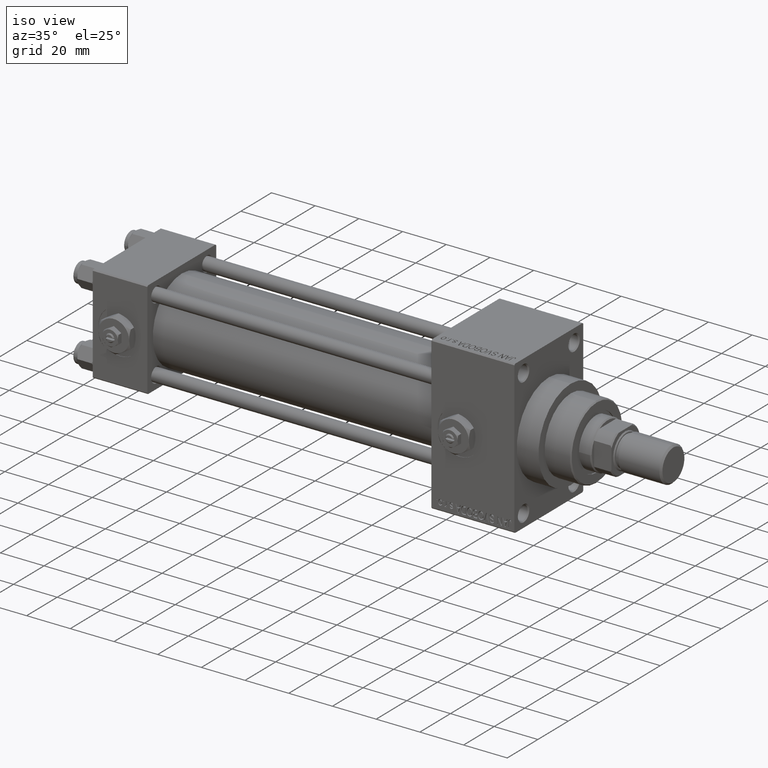
[diagram: clean part render]
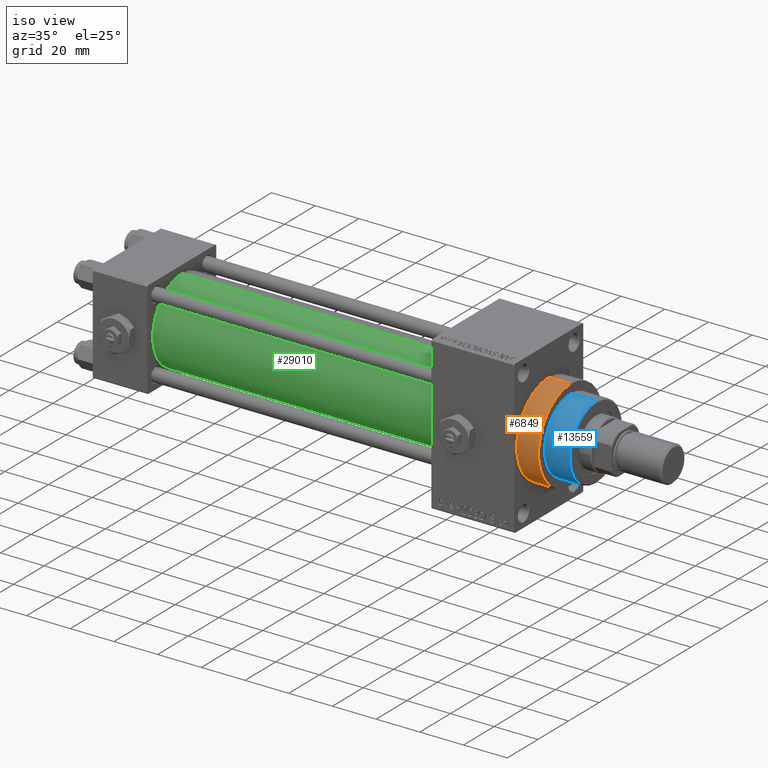
[diagram: same view with three faces highlighted in distinct colors, each labeled with its STEP entity id]
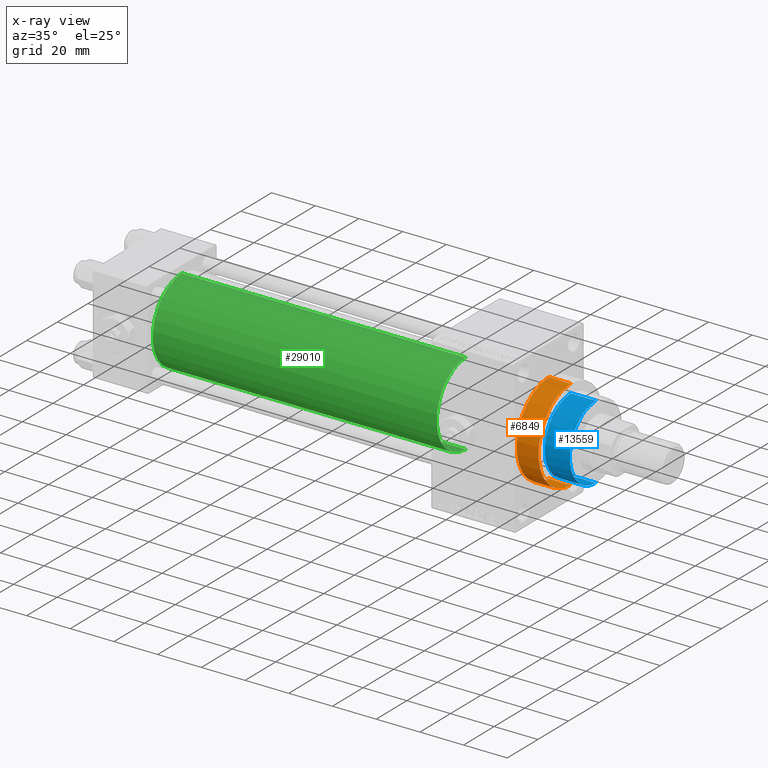
[diagram: x-ray of the same camera — body ghosted, the three highlighted faces saturated]
A machine part, iso view with three faces highlighted in distinct colors.
The next image is the same camera in x-ray (body ghosted, the three faces saturated) — at least one of them is partly hidden behind the body in this view.
Their STEP definitions:

[orange] entity #6849 — the highlighted cylindrical surface (partial cylindrical patch) has radius 21 mm, axis along (-1, -0, -0).
#2756 = VERTEX_POINT ( 'NONE', #5155 ) ;
#3358 = EDGE_CURVE ( 'NONE', #28763, #2756, #44816, .T. ) ;
#4027 = CARTESIAN_POINT ( 'NONE',  ( 193.0000000000000000, 0.000000000000000000, 21.00000000000000000 ) ) ;
#5155 = CARTESIAN_POINT ( 'NONE',  ( 193.0000000000000000, 2.571758278209441661E-15, -21.00000000000000000 ) ) ;
#5635 = DIRECTION ( 'NONE',  ( -1.000000000000000000, -0.000000000000000000, -0.000000000000000000 ) ) ;
#5747 = DIRECTION ( 'NONE',  ( 1.000000000000000000, 0.000000000000000000, 0.000000000000000000 ) ) ;
#5895 = DIRECTION ( 'NONE',  ( -1.000000000000000000, -0.000000000000000000, -0.000000000000000000 ) ) ;
#6220 = CIRCLE ( 'NONE', #34196, 21.00000000000000000 ) ;
#6781 = DIRECTION ( 'NONE',  ( 0.000000000000000000, 0.000000000000000000, -1.000000000000000000 ) ) ;
#6849 = ADVANCED_FACE ( 'NONE', ( #24664 ), #9384, .T. ) ;
#9195 = ORIENTED_EDGE ( 'NONE', *, *, #47807, .T. ) ;
#9245 = CARTESIAN_POINT ( 'NONE',  ( 203.0000000000000000, 0.000000000000000000, 0.000000000000000000 ) ) ;
#9384 = CYLINDRICAL_SURFACE ( 'NONE', #17594, 21.00000000000000000 ) ;
#9555 = CARTESIAN_POINT ( 'NONE',  ( 203.0000000000000000, 0.000000000000000000, 21.00000000000000000 ) ) ;
#10954 = ORIENTED_EDGE ( 'NONE', *, *, #39719, .T. ) ;
#11080 = ORIENTED_EDGE ( 'NONE', *, *, #3358, .F. ) ;
#13286 = CIRCLE ( 'NONE', #41310, 21.00000000000000000 ) ;
#13741 = DIRECTION ( 'NONE',  ( -1.000000000000000000, -0.000000000000000000, -0.000000000000000000 ) ) ;
#16608 = VECTOR ( 'NONE', #13741, 1000.000000000000000 ) ;
#17594 = AXIS2_PLACEMENT_3D ( 'NONE', #48225, #5635, #24921 ) ;
#19973 = VERTEX_POINT ( 'NONE', #4027 ) ;
#21178 = CARTESIAN_POINT ( 'NONE',  ( 203.0000000000000000, 0.000000000000000000, 21.00000000000000000 ) ) ;
#24664 = FACE_OUTER_BOUND ( 'NONE', #45613, .T. ) ;
#24921 = DIRECTION ( 'NONE',  ( 0.000000000000000000, 0.000000000000000000, 1.000000000000000000 ) ) ;
#25468 = EDGE_CURVE ( 'NONE', #34750, #28763, #6220, .T. ) ;
#28763 = VERTEX_POINT ( 'NONE', #29407 ) ;
#29407 = CARTESIAN_POINT ( 'NONE',  ( 203.0000000000000000, 2.571758278209441661E-15, -21.00000000000000000 ) ) ;
#33535 = CARTESIAN_POINT ( 'NONE',  ( 203.0000000000000000, 2.571758278209441661E-15, -21.00000000000000000 ) ) ;
#34063 = CARTESIAN_POINT ( 'NONE',  ( 193.0000000000000000, 0.000000000000000000, 0.000000000000000000 ) ) ;
#34196 = AXIS2_PLACEMENT_3D ( 'NONE', #9245, #5747, #36559 ) ;
#34750 = VERTEX_POINT ( 'NONE', #9555 ) ;
#36559 = DIRECTION ( 'NONE',  ( 0.000000000000000000, 0.000000000000000000, -1.000000000000000000 ) ) ;
#39015 = ORIENTED_EDGE ( 'NONE', *, *, #25468, .F. ) ;
#39719 = EDGE_CURVE ( 'NONE', #34750, #19973, #43466, .T. ) ;
#41310 = AXIS2_PLACEMENT_3D ( 'NONE', #34063, #48632, #6781 ) ;
#43466 = LINE ( 'NONE', #21178, #45002 ) ;
#44816 = LINE ( 'NONE', #33535, #16608 ) ;
#45002 = VECTOR ( 'NONE', #5895, 1000.000000000000000 ) ;
#45613 = EDGE_LOOP ( 'NONE', ( #11080, #39015, #10954, #9195 ) ) ;
#47807 = EDGE_CURVE ( 'NONE', #19973, #2756, #13286, .T. ) ;
#48225 = CARTESIAN_POINT ( 'NONE',  ( 203.0000000000000000, 0.000000000000000000, 0.000000000000000000 ) ) ;
#48632 = DIRECTION ( 'NONE',  ( 1.000000000000000000, 0.000000000000000000, 0.000000000000000000 ) ) ;

[blue] entity #13559 — the highlighted cylindrical surface (partial cylindrical patch) has radius 17 mm, axis along (-1, 0, 0).
#1868 = VECTOR ( 'NONE', #2601, 1000.000000000000000 ) ;
#2601 = DIRECTION ( 'NONE',  ( -0.000000000000000000, -0.000000000000000000, -1.000000000000000000 ) ) ;
#2620 = VERTEX_POINT ( 'NONE', #24765 ) ;
#3000 = ORIENTED_EDGE ( 'NONE', *, *, #31653, .T. ) ;
#4269 = DIRECTION ( 'NONE',  ( 0.000000000000000000, 0.000000000000000000, -1.000000000000000000 ) ) ;
#4773 = DIRECTION ( 'NONE',  ( 1.000000000000000000, 0.000000000000000000, 0.000000000000000000 ) ) ;
#6931 = ORIENTED_EDGE ( 'NONE', *, *, #44186, .F. ) ;
#8282 = CARTESIAN_POINT ( 'NONE',  ( 0.000000000000000000, 0.000000000000000000, 54.76000000000001222 ) ) ;
#9836 = VERTEX_POINT ( 'NONE', #48237 ) ;
#11670 = ORIENTED_EDGE ( 'NONE', *, *, #41743, .T. ) ;
#12012 = AXIS2_PLACEMENT_3D ( 'NONE', #8282, #4269, #4773 ) ;
#12970 = DIRECTION ( 'NONE',  ( -1.000000000000000000, 0.000000000000000000, 0.000000000000000000 ) ) ;
#13559 = ADVANCED_FACE ( 'NONE', ( #20494 ), #20751, .T. ) ;
#16724 = DIRECTION ( 'NONE',  ( -0.000000000000000000, -0.000000000000000000, -1.000000000000000000 ) ) ;
#20494 = FACE_OUTER_BOUND ( 'NONE', #38739, .T. ) ;
#20751 = CYLINDRICAL_SURFACE ( 'NONE', #34454, 17.00000000000000000 ) ;
#20803 = CARTESIAN_POINT ( 'NONE',  ( 0.000000000000000000, 0.000000000000000000, 43.25999999999999801 ) ) ;
#20834 = CIRCLE ( 'NONE', #12012, 17.00000000000000000 ) ;
#21082 = AXIS2_PLACEMENT_3D ( 'NONE', #20803, #31568, #39088 ) ;
#22788 = VERTEX_POINT ( 'NONE', #26047 ) ;
#23572 = LINE ( 'NONE', #27828, #30741 ) ;
#24765 = CARTESIAN_POINT ( 'NONE',  ( 17.00000000000000000, 2.081899558550500280E-15, 54.76000000000001222 ) ) ;
#26047 = CARTESIAN_POINT ( 'NONE',  ( 17.00000000000000000, 2.081899558550500280E-15, 43.25999999999999801 ) ) ;
#27828 = CARTESIAN_POINT ( 'NONE',  ( -17.00000000000000000, 0.000000000000000000, 55.26000000000000512 ) ) ;
#29885 = LINE ( 'NONE', #37165, #1868 ) ;
#29890 = CARTESIAN_POINT ( 'NONE',  ( -17.00000000000000000, 0.000000000000000000, 54.76000000000001222 ) ) ;
#30741 = VECTOR ( 'NONE', #39363, 1000.000000000000000 ) ;
#31568 = DIRECTION ( 'NONE',  ( 0.000000000000000000, 0.000000000000000000, 1.000000000000000000 ) ) ;
#31653 = EDGE_CURVE ( 'NONE', #48841, #2620, #20834, .T. ) ;
#34454 = AXIS2_PLACEMENT_3D ( 'NONE', #43542, #16724, #12970 ) ;
#37165 = CARTESIAN_POINT ( 'NONE',  ( 17.00000000000000000, 2.081899558550500280E-15, 55.26000000000000512 ) ) ;
#38739 = EDGE_LOOP ( 'NONE', ( #3000, #11670, #48042, #6931 ) ) ;
#39088 = DIRECTION ( 'NONE',  ( 1.000000000000000000, 0.000000000000000000, 0.000000000000000000 ) ) ;
#39363 = DIRECTION ( 'NONE',  ( -0.000000000000000000, -0.000000000000000000, -1.000000000000000000 ) ) ;
#41743 = EDGE_CURVE ( 'NONE', #2620, #22788, #29885, .T. ) ;
#42017 = EDGE_CURVE ( 'NONE', #22788, #9836, #42665, .T. ) ;
#42665 = CIRCLE ( 'NONE', #21082, 17.00000000000000000 ) ;
#43542 = CARTESIAN_POINT ( 'NONE',  ( 0.000000000000000000, 0.000000000000000000, 55.26000000000000512 ) ) ;
#44186 = EDGE_CURVE ( 'NONE', #48841, #9836, #23572, .T. ) ;
#48042 = ORIENTED_EDGE ( 'NONE', *, *, #42017, .T. ) ;
#48237 = CARTESIAN_POINT ( 'NONE',  ( -17.00000000000000000, 0.000000000000000000, 43.25999999999999801 ) ) ;
#48841 = VERTEX_POINT ( 'NONE', #29890 ) ;

[green] entity #29010 — the highlighted cylindrical surface (partial cylindrical patch) has radius 19 mm, axis along (-1, -0, -0).
#3031 = DIRECTION ( 'NONE',  ( -1.000000000000000000, -0.000000000000000000, -0.000000000000000000 ) ) ;
#4288 = DIRECTION ( 'NONE',  ( 0.000000000000000000, 0.000000000000000000, -1.000000000000000000 ) ) ;
#4555 = CARTESIAN_POINT ( 'NONE',  ( 155.0000000000000000, -2.602085213965210642E-15, 0.000000000000000000 ) ) ;
#6039 = LINE ( 'NONE', #10049, #40960 ) ;
#9016 = AXIS2_PLACEMENT_3D ( 'NONE', #38941, #43441, #15867 ) ;
#9077 = FACE_OUTER_BOUND ( 'NONE', #18219, .T. ) ;
#10049 = CARTESIAN_POINT ( 'NONE',  ( 155.0000000000000000, -2.752562955852396712E-16, -19.00000000000000000 ) ) ;
#11011 = VERTEX_POINT ( 'NONE', #26801 ) ;
#15349 = EDGE_CURVE ( 'NONE', #24690, #11011, #6039, .T. ) ;
#15867 = DIRECTION ( 'NONE',  ( 0.000000000000000000, 0.000000000000000000, 1.000000000000000000 ) ) ;
#18098 = CARTESIAN_POINT ( 'NONE',  ( 155.0000000000000000, -2.602085213965210642E-15, 19.00000000000000000 ) ) ;
#18219 = EDGE_LOOP ( 'NONE', ( #27294, #20037, #23420, #37511 ) ) ;
#20037 = ORIENTED_EDGE ( 'NONE', *, *, #34437, .F. ) ;
#20602 = DIRECTION ( 'NONE',  ( 0.000000000000000000, 0.000000000000000000, 1.000000000000000000 ) ) ;
#20618 = VERTEX_POINT ( 'NONE', #35151 ) ;
#23212 = AXIS2_PLACEMENT_3D ( 'NONE', #30126, #38383, #4288 ) ;
#23420 = ORIENTED_EDGE ( 'NONE', *, *, #23837, .T. ) ;
#23837 = EDGE_CURVE ( 'NONE', #20618, #27536, #26600, .T. ) ;
#24584 = VECTOR ( 'NONE', #48676, 1000.000000000000000 ) ;
#24690 = VERTEX_POINT ( 'NONE', #31146 ) ;
#26600 = LINE ( 'NONE', #18098, #24584 ) ;
#26801 = CARTESIAN_POINT ( 'NONE',  ( 24.99999999999999289, -2.752562955852396712E-16, -19.00000000000000000 ) ) ;
#27294 = ORIENTED_EDGE ( 'NONE', *, *, #15349, .F. ) ;
#27536 = VERTEX_POINT ( 'NONE', #47602 ) ;
#29010 = ADVANCED_FACE ( 'NONE', ( #9077 ), #38885, .T. ) ;
#30126 = CARTESIAN_POINT ( 'NONE',  ( 155.0000000000000000, -2.602085213965210642E-15, 0.000000000000000000 ) ) ;
#31146 = CARTESIAN_POINT ( 'NONE',  ( 155.0000000000000000, -2.752562955852396712E-16, -19.00000000000000000 ) ) ;
#33811 = CIRCLE ( 'NONE', #9016, 19.00000000000000000 ) ;
#34437 = EDGE_CURVE ( 'NONE', #20618, #24690, #48060, .T. ) ;
#35124 = DIRECTION ( 'NONE',  ( -1.000000000000000000, -0.000000000000000000, -0.000000000000000000 ) ) ;
#35151 = CARTESIAN_POINT ( 'NONE',  ( 155.0000000000000000, -2.602085213965210642E-15, 19.00000000000000000 ) ) ;
#37511 = ORIENTED_EDGE ( 'NONE', *, *, #39434, .T. ) ;
#38383 = DIRECTION ( 'NONE',  ( 1.000000000000000000, 0.000000000000000000, 0.000000000000000000 ) ) ;
#38885 = CYLINDRICAL_SURFACE ( 'NONE', #42347, 19.00000000000000000 ) ;
#38941 = CARTESIAN_POINT ( 'NONE',  ( 24.99999999999999289, -2.602085213965210642E-15, 0.000000000000000000 ) ) ;
#39434 = EDGE_CURVE ( 'NONE', #27536, #11011, #33811, .T. ) ;
#40960 = VECTOR ( 'NONE', #3031, 1000.000000000000000 ) ;
#42347 = AXIS2_PLACEMENT_3D ( 'NONE', #4555, #35124, #20602 ) ;
#43441 = DIRECTION ( 'NONE',  ( 1.000000000000000000, -0.000000000000000000, 0.000000000000000000 ) ) ;
#47602 = CARTESIAN_POINT ( 'NONE',  ( 24.99999999999999289, -2.602085213965210642E-15, 19.00000000000000000 ) ) ;
#48060 = CIRCLE ( 'NONE', #23212, 19.00000000000000000 ) ;
#48676 = DIRECTION ( 'NONE',  ( -1.000000000000000000, -0.000000000000000000, -0.000000000000000000 ) ) ;